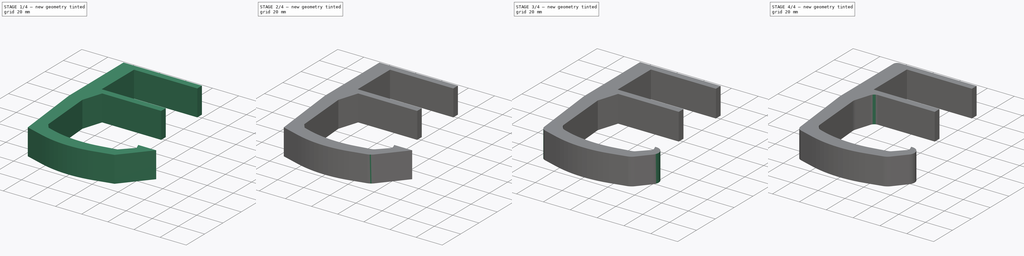
[diagram: build sequence overview — one tinted view per stage of 4, left to right]
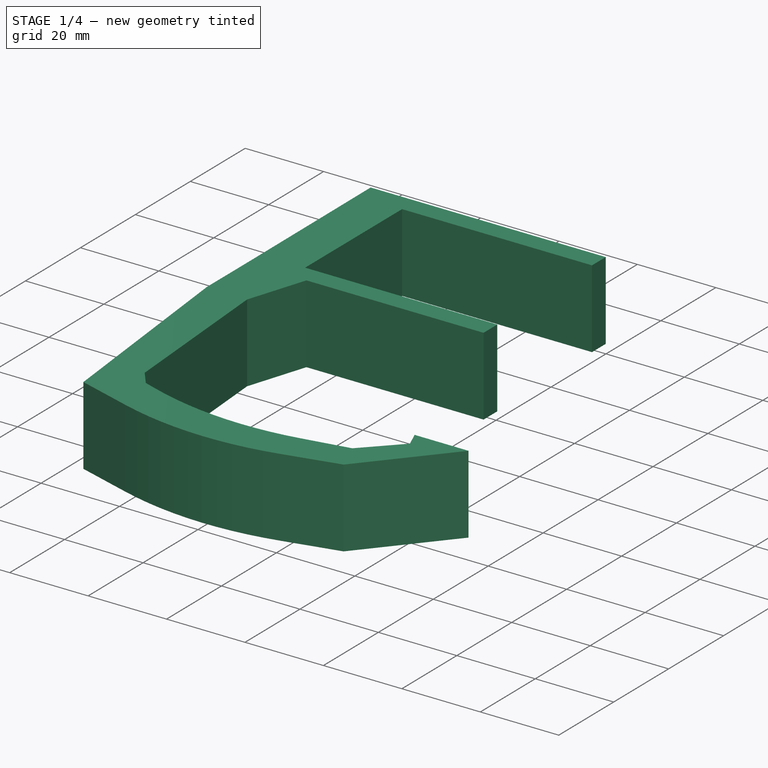
[diagram: stage 1 of 4 — iso view after this stage's code; geometry added in this stage tinted green]
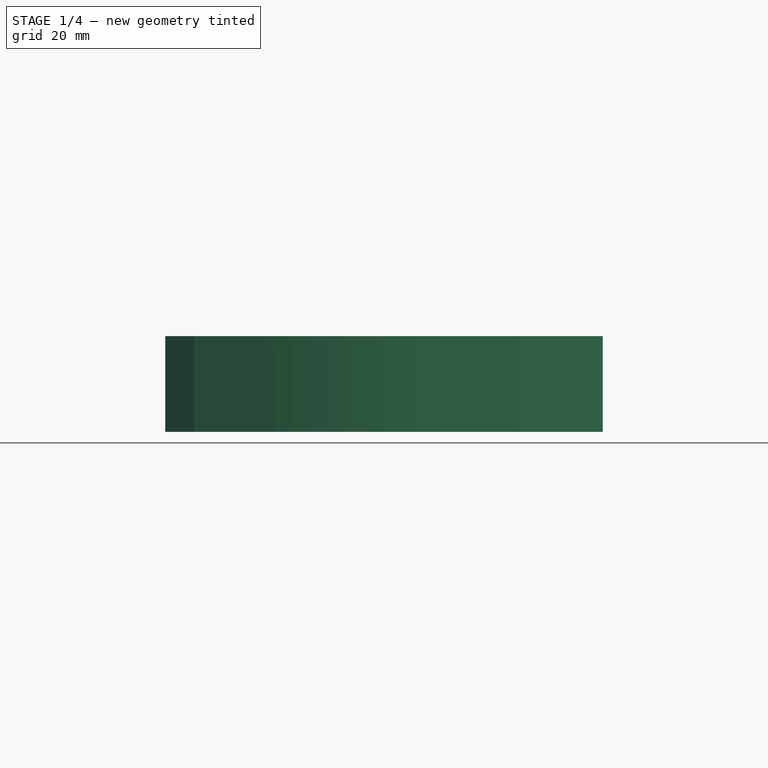
[diagram: stage 1 of 4 — front view after this stage's code; geometry added in this stage tinted green]
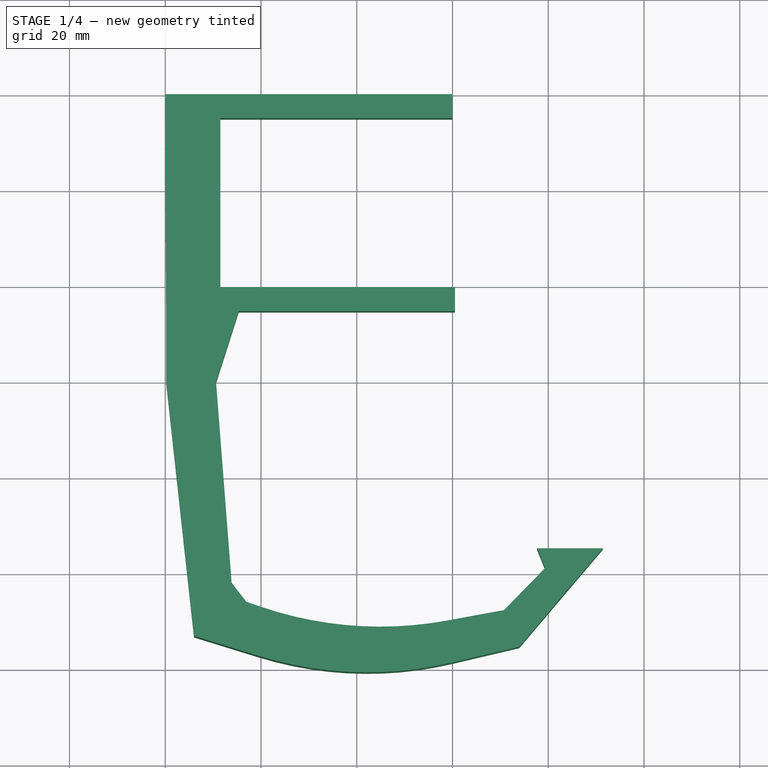
[diagram: stage 1 of 4 — top view after this stage's code; geometry added in this stage tinted green]
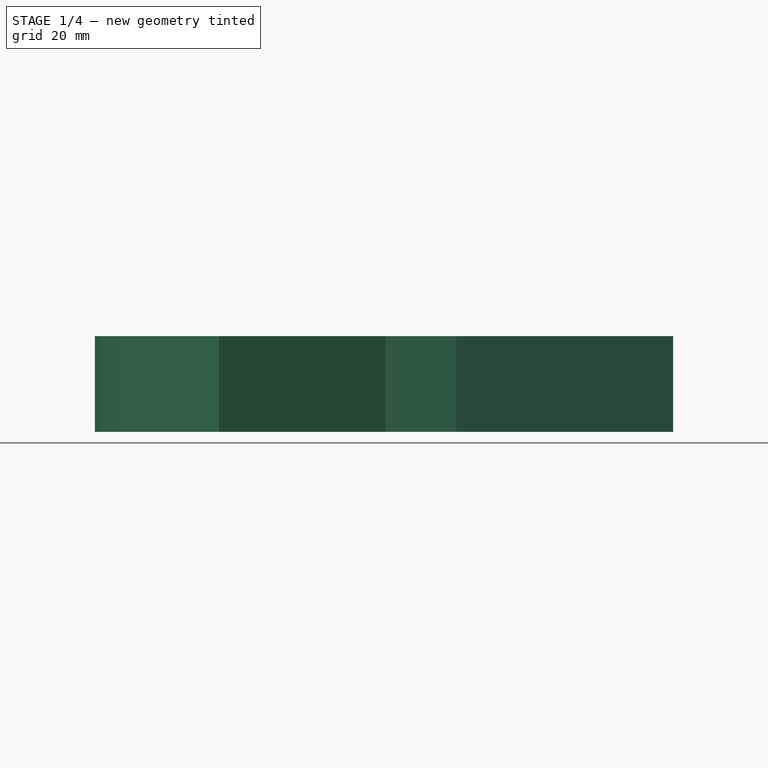
[diagram: stage 1 of 4 — right view after this stage's code; geometry added in this stage tinted green]
FCSTD DOCUMENT  (FreeCAD 0.16R6712 (Git))
Label: pinza
License: All rights reserved
LicenseURL: http://en.wikipedia.org/wiki/All_rights_reserved
objects: PartDesign::Fillet×10, Sketcher::SketchObject×1, PartDesign::Pad×1, PartDesign::Chamfer×1
note: 14 computed .brp shape members not serialized (recipe doc carries the construction recipe); baked Part::Feature solids carry a one-line shape summary decoded from their .brp

FEATURE [Sketcher::SketchObject] Sketch
  sketch-geometry (20):
    g0: LineSegment StartX=0 StartY=0 StartZ=0 EndX=59.9501 EndY=0 EndZ=0
    g1: LineSegment StartX=59.9501 StartY=0 StartZ=0 EndX=59.9501 EndY=-5 EndZ=0
    g2: LineSegment StartX=59.9501 StartY=-5 StartZ=0 EndX=11.5185 EndY=-5 EndZ=0
    g3: LineSegment StartX=11.5185 StartY=-5 StartZ=0 EndX=11.5185 EndY=-40.3 EndZ=0
    g4: LineSegment StartX=11.5185 StartY=-40.3 StartZ=0 EndX=60.5197 EndY=-40.3 EndZ=0
    g5: LineSegment StartX=60.5197 StartY=-40.3 StartZ=0 EndX=60.5197 EndY=-45.3 EndZ=0
    g6: LineSegment StartX=60.5197 StartY=-45.3 StartZ=0 EndX=15.3532 EndY=-45.3 EndZ=0
    g7: LineSegment StartX=10.6176 StartY=-60.1483 StartZ=0 EndX=14.1045 EndY=-105.074 EndZ=0
    g8: LineSegment StartX=14.1045 StartY=-105.074 StartZ=0 EndX=39.0717 EndY=-113.622 EndZ=0
    g9: LineSegment StartX=39.0717 StartY=-113.622 StartZ=0 EndX=70.7869 EndY=-107.773 EndZ=0
    g10: LineSegment StartX=70.7869 StartY=-107.773 StartZ=0 EndX=79.3342 EndY=-99.0011 EndZ=0
    g11: LineSegment StartX=79.3342 StartY=-99.0011 StartZ=0 EndX=77.6534 EndY=-94.8722 EndZ=0
    g12: LineSegment StartX=77.6534 StartY=-94.8722 StartZ=0 EndX=91.3899 EndY=-94.8722 EndZ=0
    g13: LineSegment StartX=91.3899 StartY=-94.8722 StartZ=0 EndX=73.9359 EndY=-115.421 EndZ=0
    g14: LineSegment StartX=73.9359 StartY=-115.421 StartZ=0 EndX=39.5216 EndY=-123.518 EndZ=0
    g15: LineSegment StartX=39.5216 StartY=-123.518 StartZ=0 EndX=6.00701 EndY=-113.172 EndZ=0
    g16: LineSegment StartX=6.00701 StartY=-113.172 StartZ=0 EndX=0.177902 EndY=-59.8736 EndZ=0
    g17: LineSegment StartX=10.6176 StartY=-60.1483 StartZ=0 EndX=15.3532 EndY=-45.3 EndZ=0
    g18: LineSegment StartX=0 StartY=0 StartZ=0 EndX=0.177902 EndY=-43.7922 EndZ=0
    g19: LineSegment StartX=0.177902 StartY=-59.8736 StartZ=0 EndX=0.177902 EndY=-43.7922 EndZ=0
  constraints (33):
    c: Coincident(g0,g-1)
    c: Horizontal(g0)
    c: Coincident(g1,g0)
    c: Vertical(g1)
    c: Coincident(g2,g1)
    c: Horizontal(g2)
    c: Coincident(g3,g2)
    c: Vertical(g3)
    c: Coincident(g4,g3)
    c: Horizontal(g4)
    c: Coincident(g5,g4)
    c: Coincident(g6,g5)
    c: Horizontal(g6)
    c: Coincident(g8,g7)
    c: Coincident(g9,g8)
    c: Coincident(g10,g9)
    c: Coincident(g11,g10)
    c: Coincident(g12,g11)
    c: Horizontal(g12)
    c: Coincident(g13,g12)
    c: Coincident(g14,g13)
    c: Coincident(g15,g14)
    c: Coincident(g16,g15)
    c: Coincident(g17,g7)
    c: Coincident(g17,g6)
    c: Vertical(g5)
    c: DistanceY(g4,g1) = 35.3  'TABLE_THICKNESS'
    c: DistanceY(g1,g1) = 5
    c: DistanceY(g5,g5) = 5
    c: Coincident(g18,g-1)
    c: Coincident(g19,g16)
    c: Coincident(g19,g18)
    c: Vertical(g19)
FEATURE [PartDesign::Pad] Pad
  Length = 20
  Length2 = 100
  Sketch = -> Sketch
  Type = 0
FEATURE [PartDesign::Fillet] Fillet
  Base = -> Pad [Edge29,Edge47]
  Radius = 77
FEATURE [PartDesign::Chamfer] Chamfer
  Base = -> Fillet [Edge3]
  Size = 3
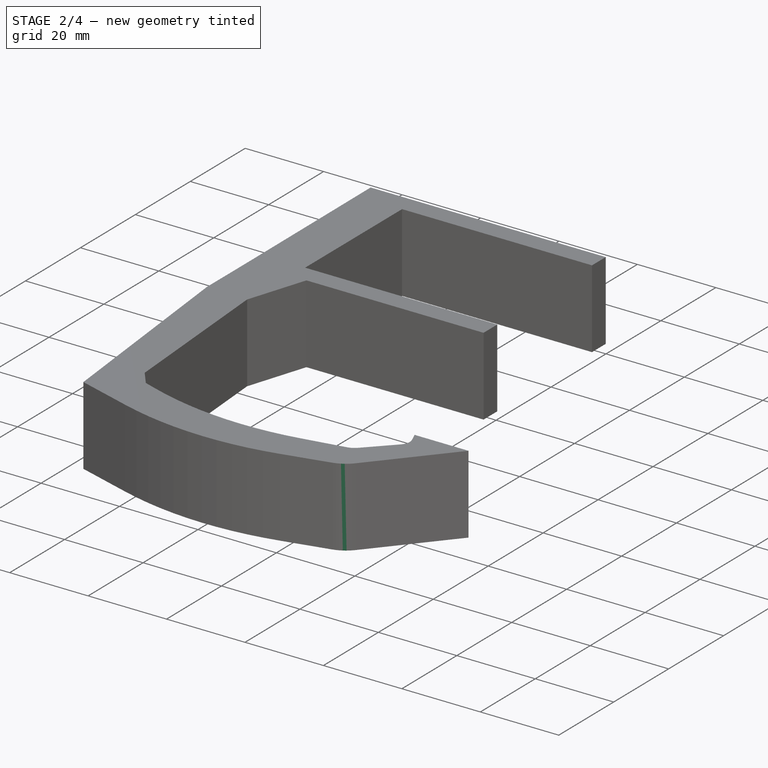
[diagram: stage 2 of 4 — iso view after this stage's code; geometry added in this stage tinted green]
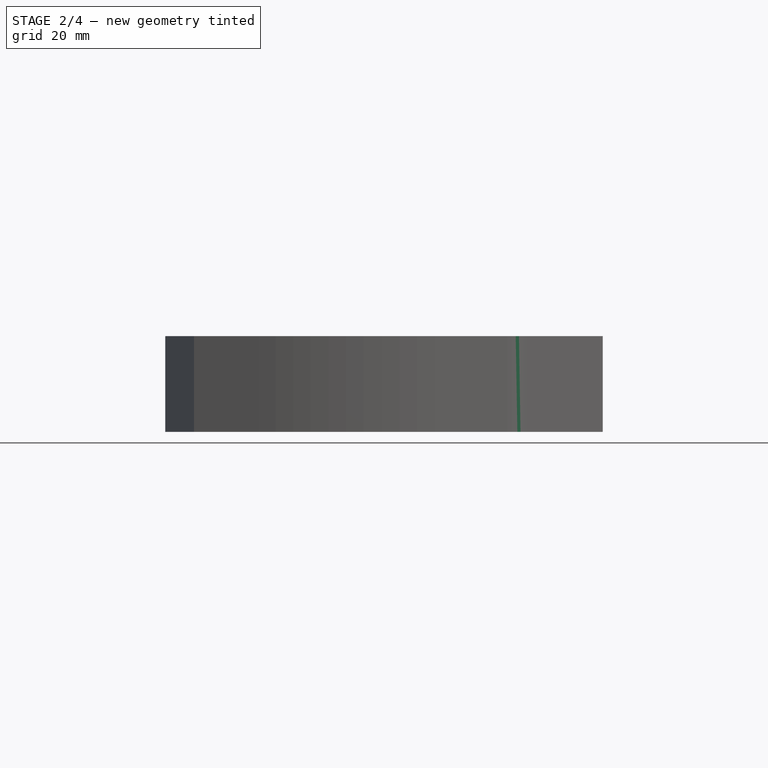
[diagram: stage 2 of 4 — front view after this stage's code; geometry added in this stage tinted green]
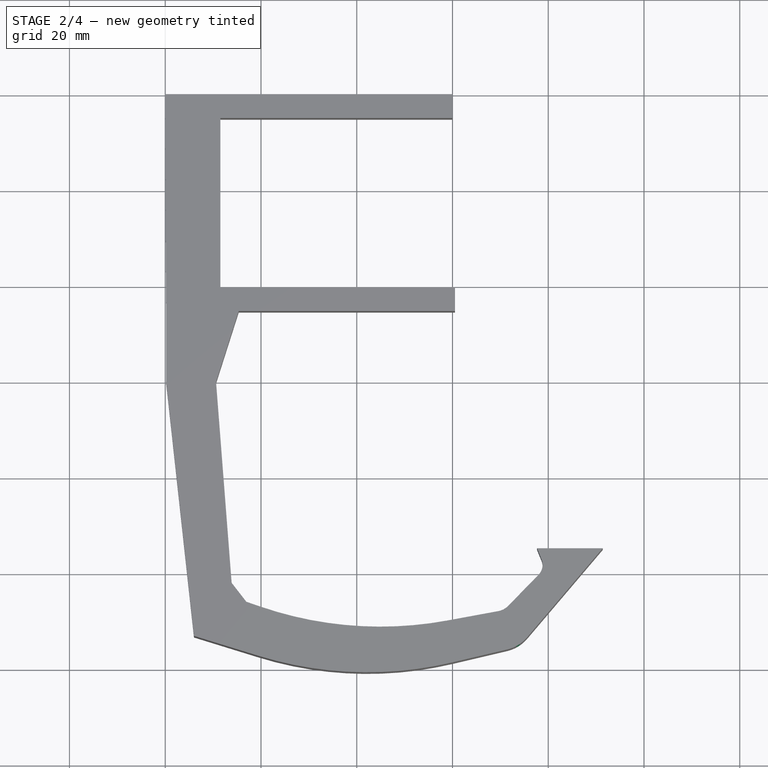
[diagram: stage 2 of 4 — top view after this stage's code; geometry added in this stage tinted green]
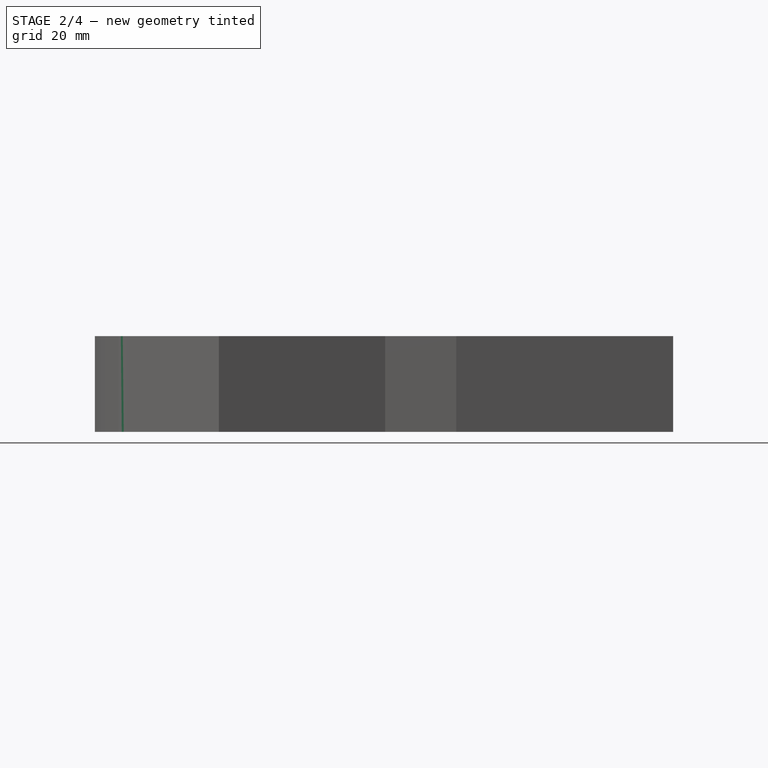
[diagram: stage 2 of 4 — right view after this stage's code; geometry added in this stage tinted green]
FEATURE [PartDesign::Fillet] Fillet001
  Base = -> Chamfer [Edge54]
  Radius = 3
FEATURE [PartDesign::Fillet] Fillet002
  Base = -> Fillet001 [Edge26]
  Radius = 4
FEATURE [PartDesign::Fillet] Fillet003
  Base = -> Fillet002 [Edge43]
  Radius = 8
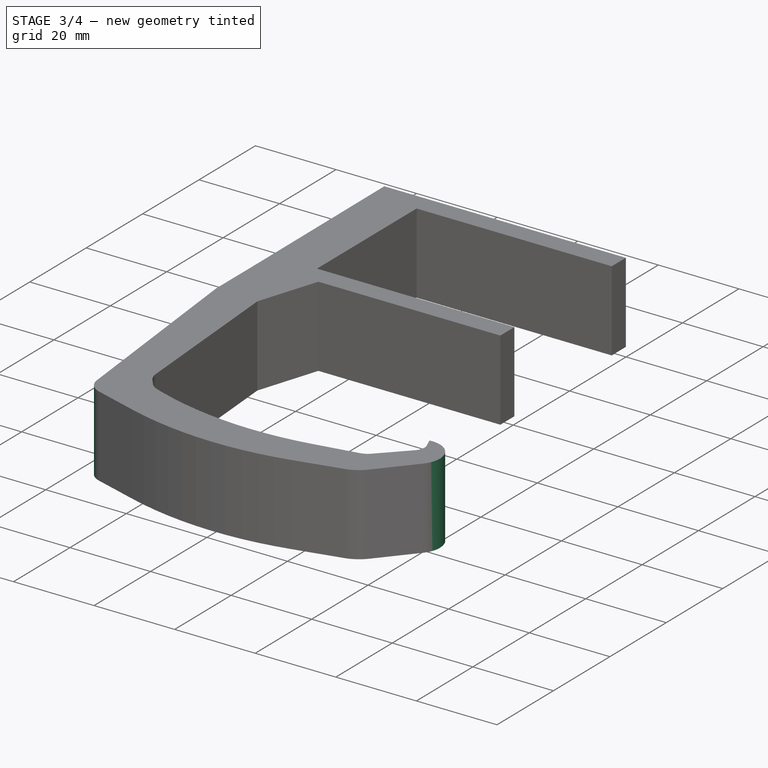
[diagram: stage 3 of 4 — iso view after this stage's code; geometry added in this stage tinted green]
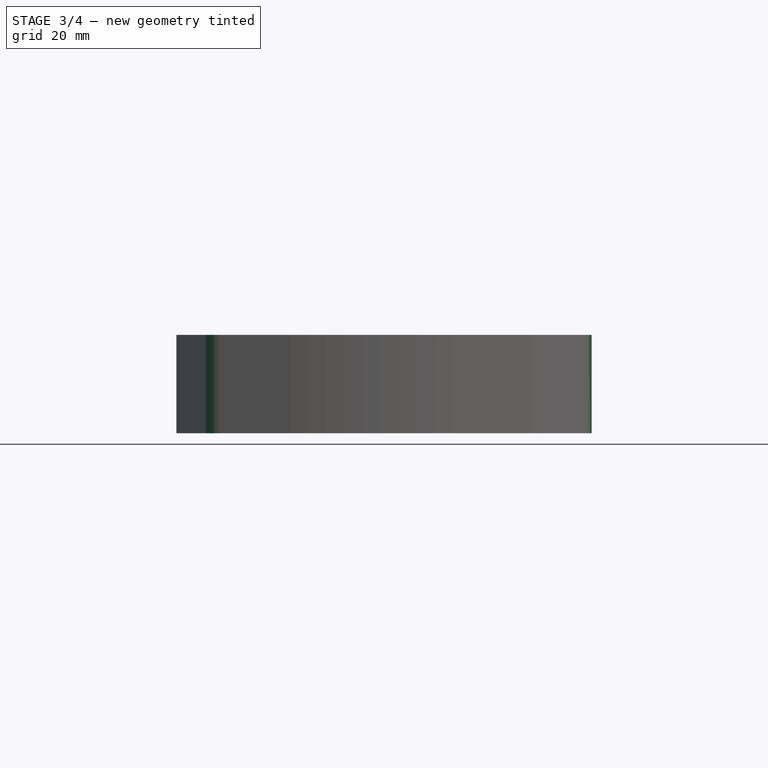
[diagram: stage 3 of 4 — front view after this stage's code; geometry added in this stage tinted green]
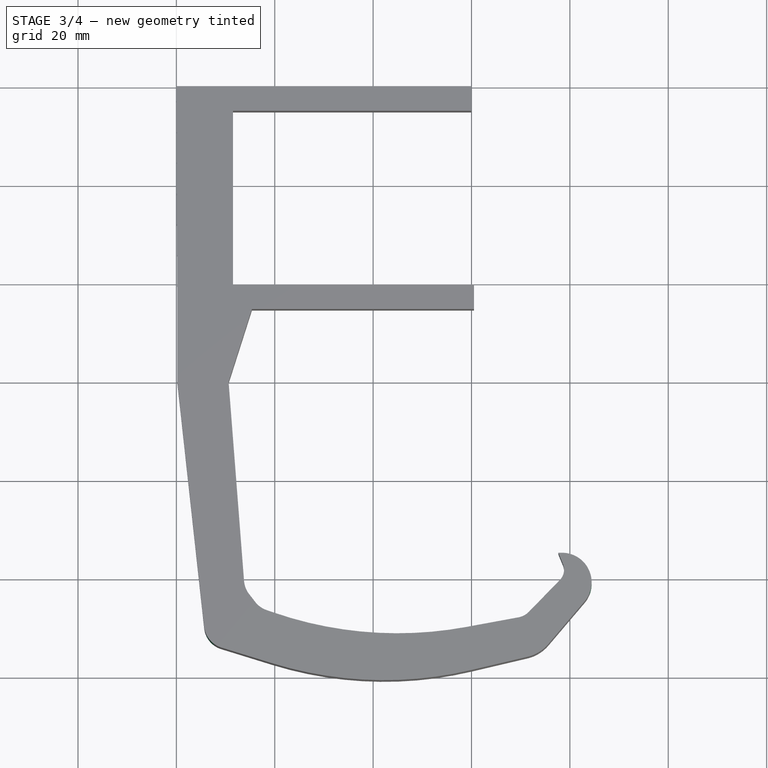
[diagram: stage 3 of 4 — top view after this stage's code; geometry added in this stage tinted green]
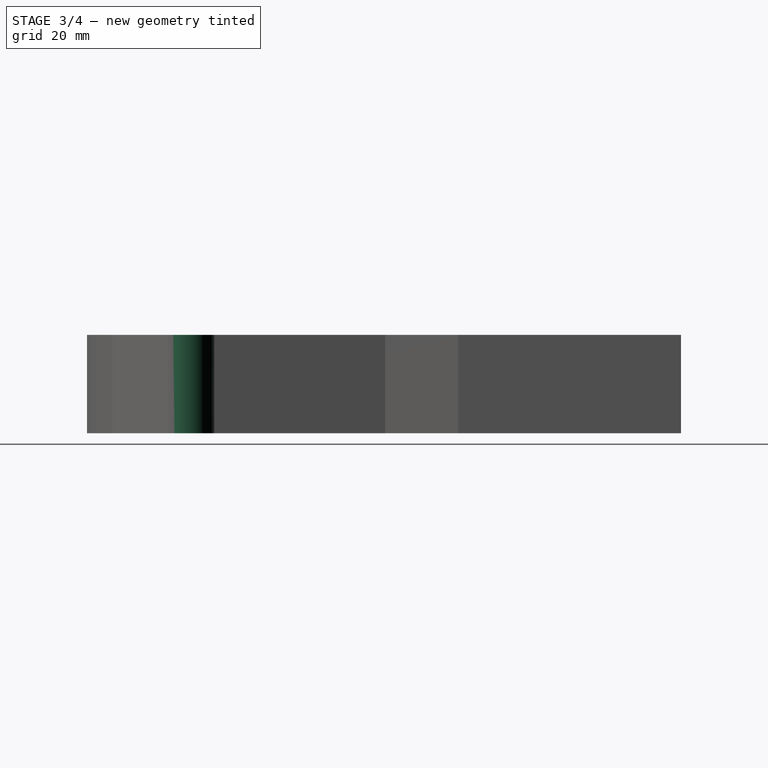
[diagram: stage 3 of 4 — right view after this stage's code; geometry added in this stage tinted green]
FEATURE [PartDesign::Fillet] Fillet004
  Base = -> Fillet003 [Edge28]
  Radius = 6
FEATURE [PartDesign::Fillet] Fillet005
  Base = -> Fillet004 [Edge45]
  Radius = 5
FEATURE [PartDesign::Fillet] Fillet006
  Base = -> Fillet005 [Edge80,Edge82]
  Radius = 5
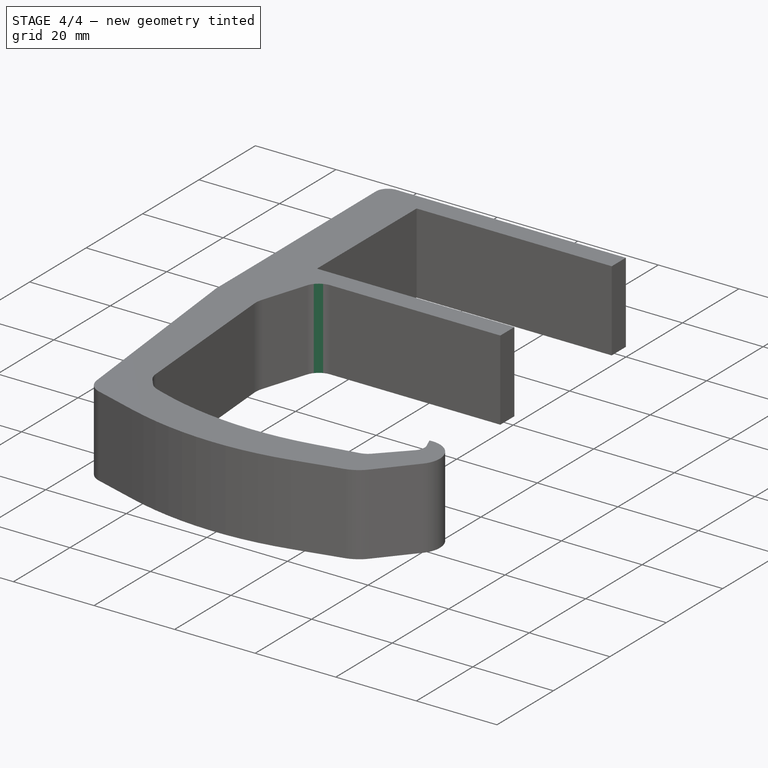
[diagram: stage 4 of 4 — iso view after this stage's code; geometry added in this stage tinted green]
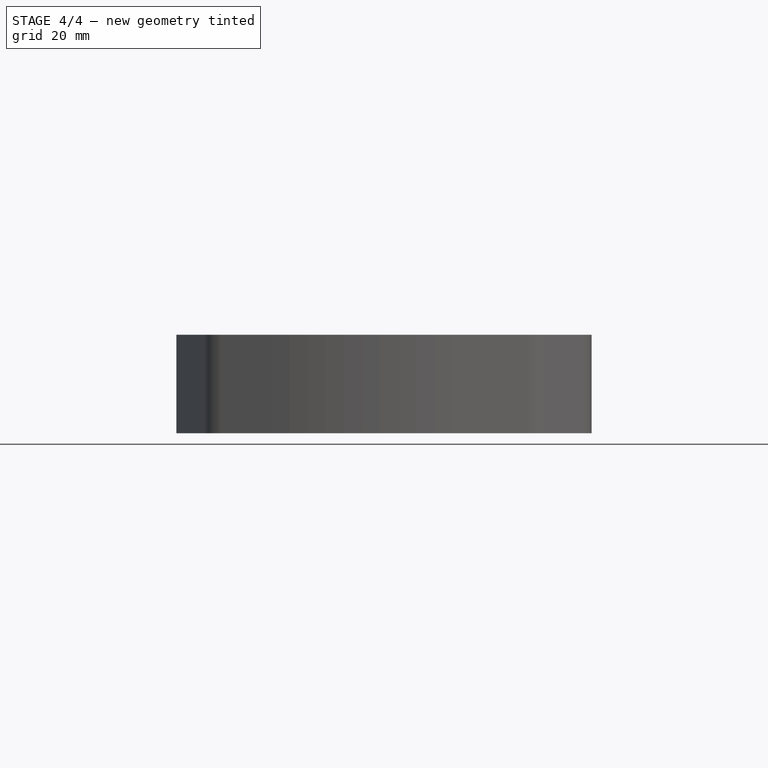
[diagram: stage 4 of 4 — front view after this stage's code; geometry added in this stage tinted green]
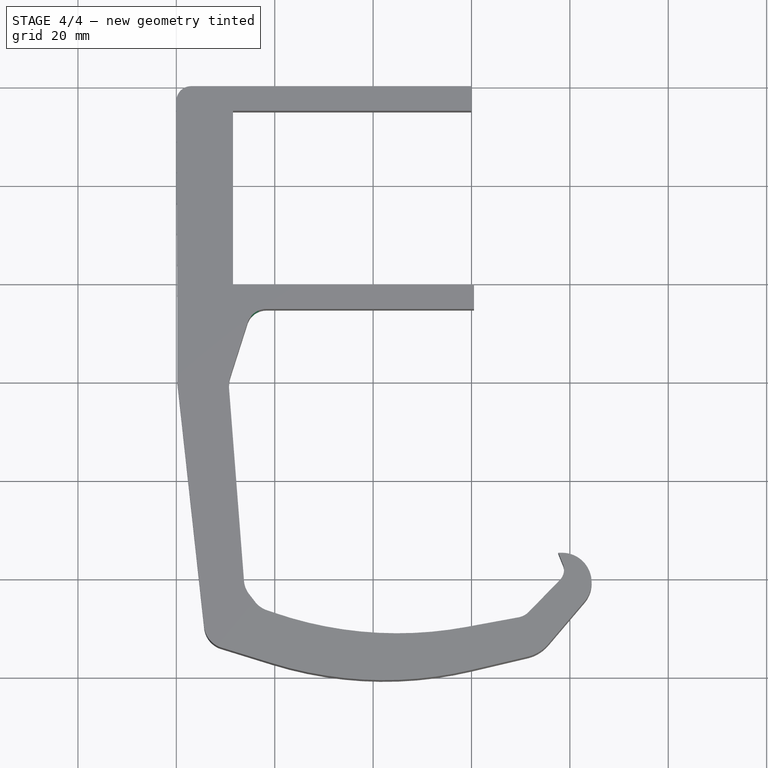
[diagram: stage 4 of 4 — top view after this stage's code; geometry added in this stage tinted green]
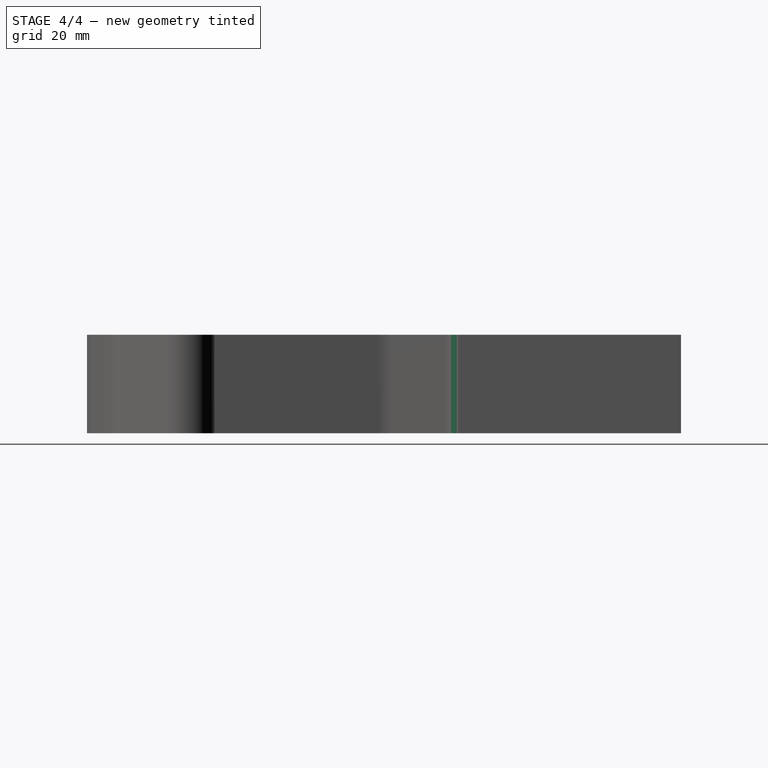
[diagram: stage 4 of 4 — right view after this stage's code; geometry added in this stage tinted green]
FEATURE [PartDesign::Fillet] Fillet007
  Base = -> Fillet006 [Edge36]
  Radius = 4
FEATURE [PartDesign::Fillet] Fillet008
  Base = -> Fillet007 [Edge33]
  Radius = 7
FEATURE [PartDesign::Fillet] Fillet009
  Base = -> Fillet008 [Edge66]
  Radius = 3
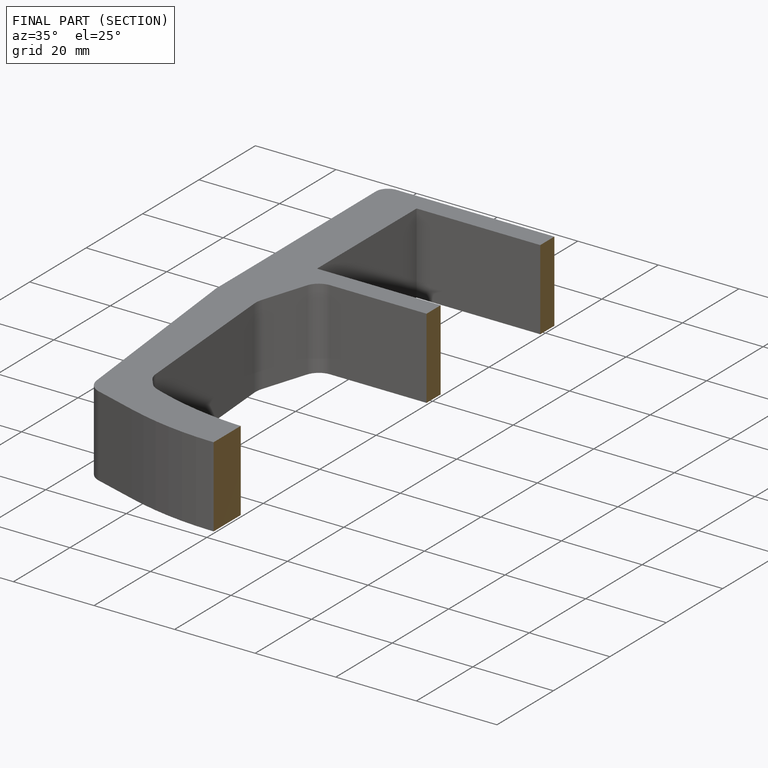
[diagram: finished part — half-section view (interior)]
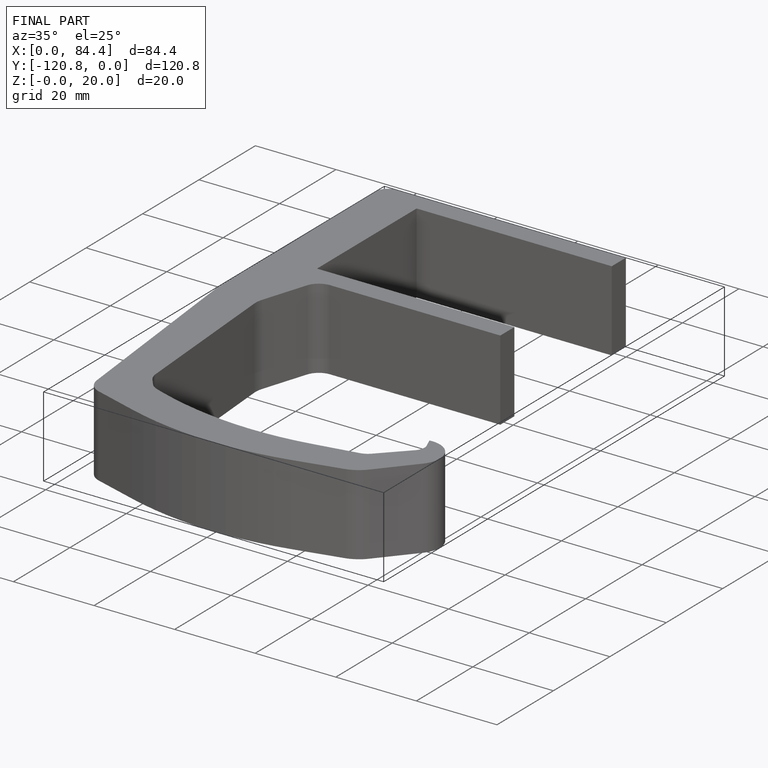
[diagram: finished part — iso view with bounding-box wireframe]
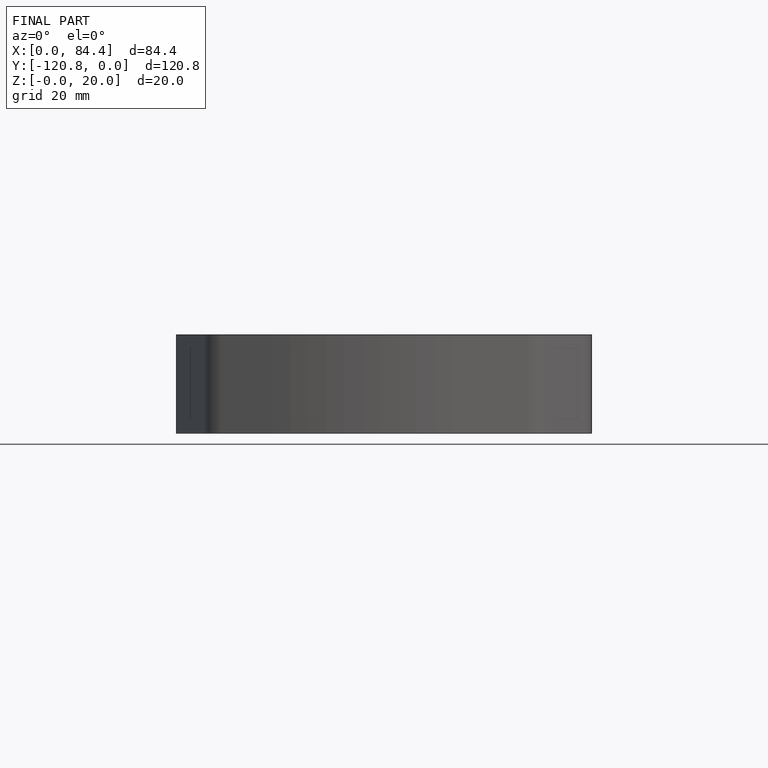
[diagram: finished part — front view with bounding-box wireframe]
